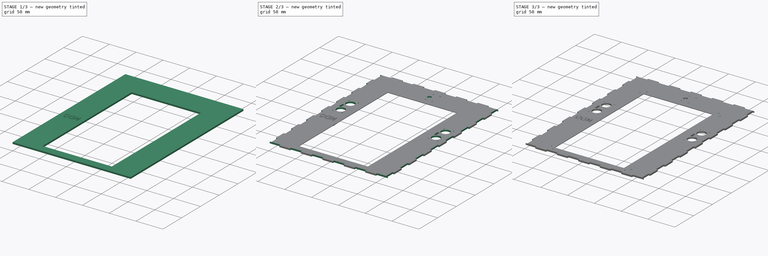
[diagram: build sequence overview — one tinted view per stage of 3, left to right]
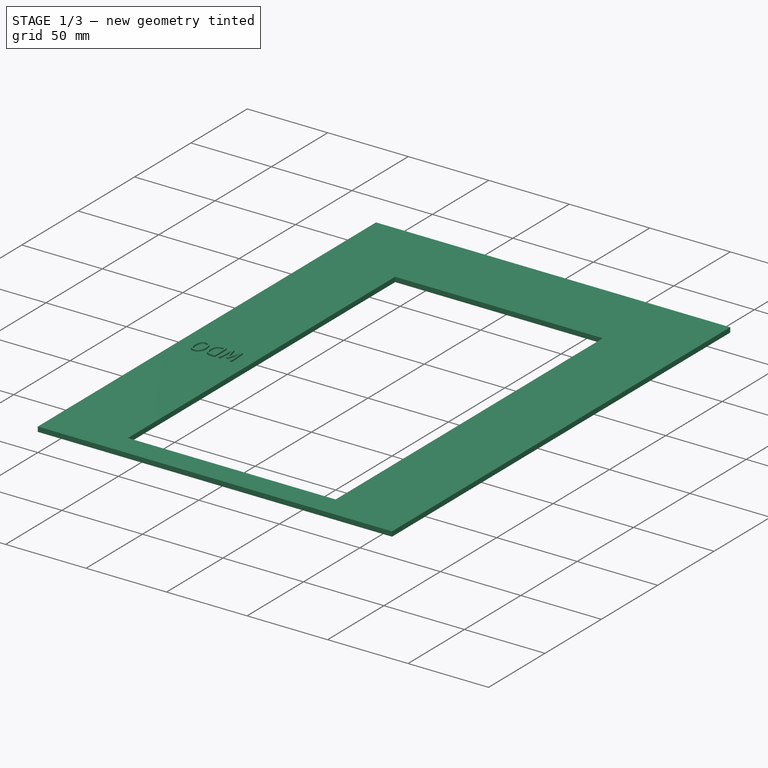
[diagram: stage 1 of 3 — iso view after this stage's code; geometry added in this stage tinted green]
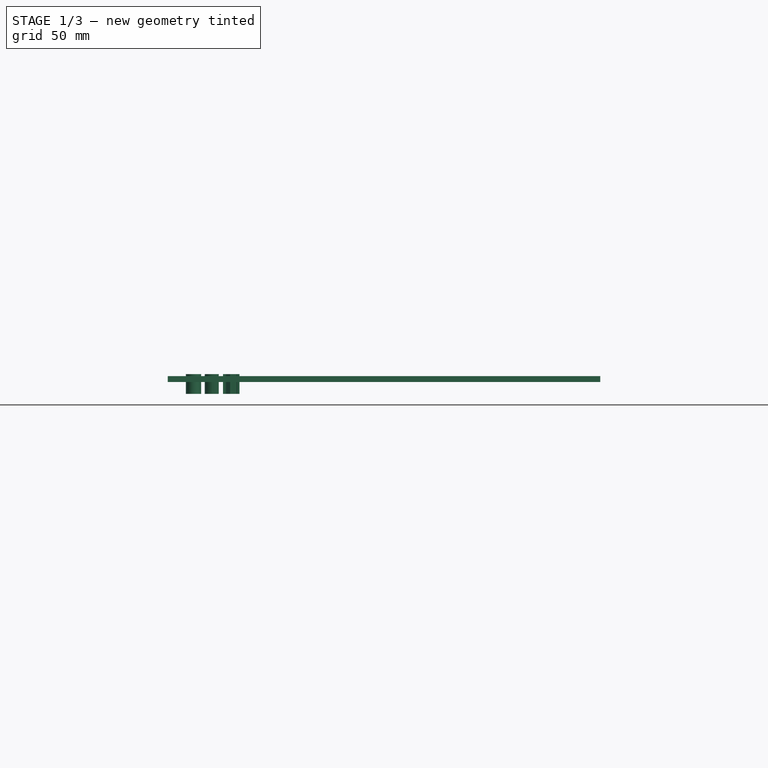
[diagram: stage 1 of 3 — front view after this stage's code; geometry added in this stage tinted green]
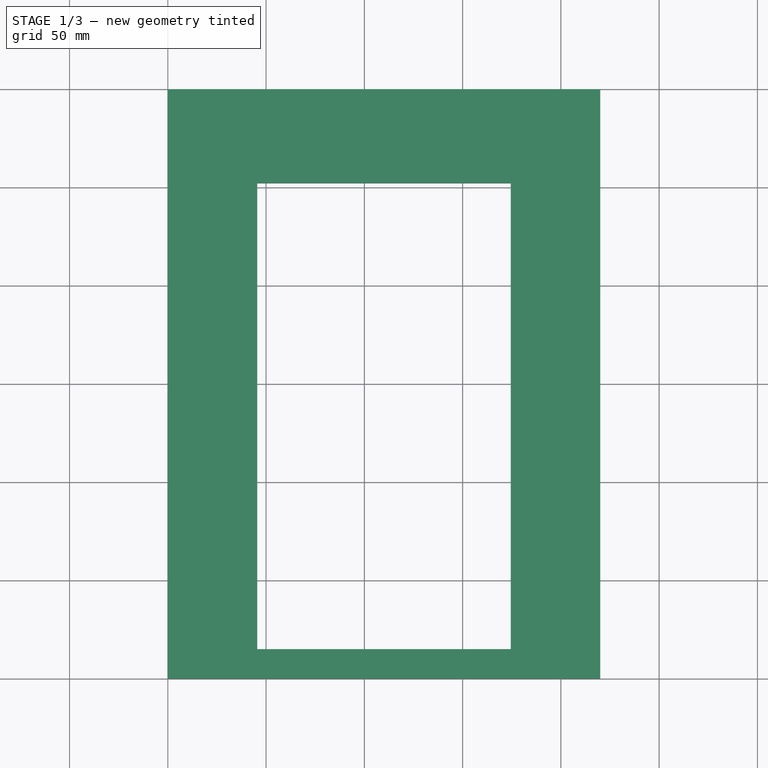
[diagram: stage 1 of 3 — top view after this stage's code; geometry added in this stage tinted green]
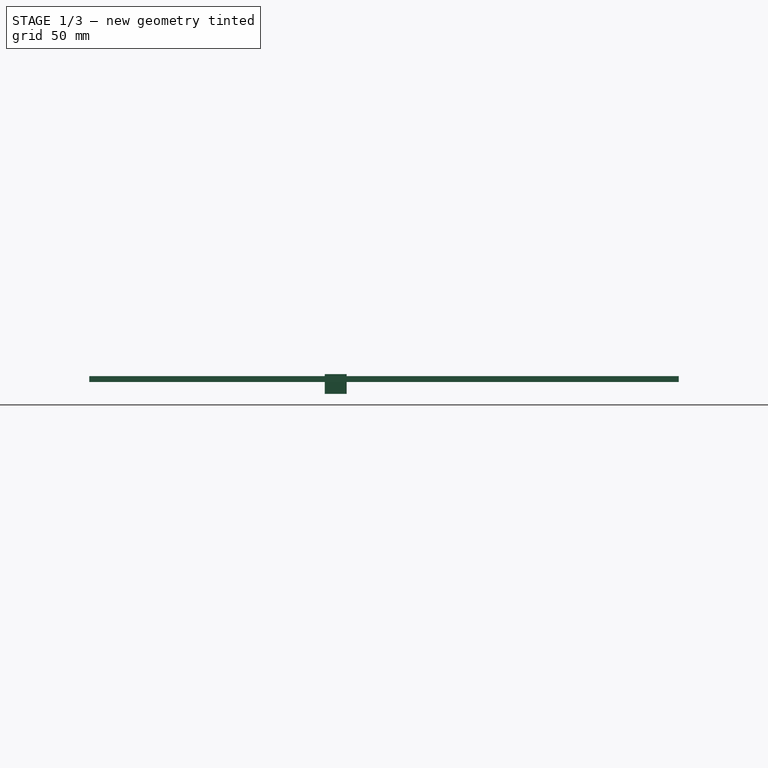
[diagram: stage 1 of 3 — right view after this stage's code; geometry added in this stage tinted green]
FCSTD DOCUMENT  (FreeCAD 0.19R24366 (Git))
Label: mdo
License: All rights reserved
LicenseURL: http://en.wikipedia.org/wiki/All_rights_reserved
objects: Sketcher::SketchObject×4, PartDesign::Pocket×3, PartDesign::Pad×1, Part::Part2DObjectPython×1, PartDesign::Body×1, Part::Extrusion×1, TechDraw::DrawSVGTemplate×1, Part::Cut×1, TechDraw::DrawViewPart×1, TechDraw::DrawPage×1
note: 16 computed .brp shape members not serialized (recipe doc carries the construction recipe); baked Part::Feature solids carry a one-line shape summary decoded from their .brp

FEATURE [Sketcher::SketchObject] Sketch  label="solid"
  FullyConstrained = true
  MapMode = 5
  Support = -> [XY_Plane]
  sketch-geometry (8):
    g0: LineSegment StartX=0 StartY=0 StartZ=0 EndX=220 EndY=0 EndZ=0
    g1: LineSegment StartX=220 StartY=0 StartZ=0 EndX=220 EndY=300 EndZ=0
    g2: LineSegment StartX=220 StartY=300 StartZ=0 EndX=0 EndY=300 EndZ=0
    g3: LineSegment StartX=0 StartY=300 StartZ=0 EndX=0 EndY=0 EndZ=0
    g4: LineSegment StartX=45.5 StartY=252 StartZ=0 EndX=174.5 EndY=252 EndZ=0
    g5: LineSegment StartX=174.5 StartY=252 StartZ=0 EndX=174.5 EndY=15 EndZ=0
    g6: LineSegment StartX=174.5 StartY=15 StartZ=0 EndX=45.5 EndY=15 EndZ=0
    g7: LineSegment StartX=45.5 StartY=15 StartZ=0 EndX=45.5 EndY=252 EndZ=0
  constraints (23):
    c: Coincident(g0,g1)
    c: Coincident(g1,g2)
    c: Coincident(g2,g3)
    c: Coincident(g3,g0)
    c: Horizontal(g0)
    c: Horizontal(g2)
    c: Vertical(g1)
    c: Vertical(g3)
    c: Coincident(g0,g-1)
    c: DistanceX(g0,g0) = 220
    c: DistanceY(g3,g3) = 300
    c: Coincident(g4,g5)
    c: Coincident(g5,g6)
    c: Coincident(g6,g7)
    c: Coincident(g7,g4)
    c: Horizontal(g4)
    c: Horizontal(g6)
    c: Vertical(g5)
    c: Vertical(g7)
    c: DistanceY(g0,g5) = 15
    c: DistanceY(g5,g5) = 237
    c: DistanceX(g6,g6) = 129
    c: DistanceX(g2,g4) = 45.5
FEATURE [PartDesign::Pad] Pad
  Direction = (1,1,1)
  Length = 3
  Length2 = 100
  Profile = -> Sketch
  Type = 0
FEATURE [Part::Part2DObjectPython] ShapeString  # Draft 2D object (typed FeaturePython)
  FontFile = <path>
  Placement = pos=(8,120,3) rot=(0,0,1;0rad)
  Size = 12
  String = MDO
  Tracking = 0
FEATURE [PartDesign::Body] Body
  Group = -> [Sketch,Pad,Sketch001,Pocket,Sketch002,Pocket001,Sketch003,Pocket002,ShapeString]
  Origin = -> Origin
  Tip = -> Pocket002
FEATURE [Part::Extrusion] Extrude
  Base = -> ShapeString
  Dir = (0,0,1)
  DirMode = 2
  FaceMakerClass = Part::FaceMakerBullseye
  LengthFwd = 10
  LengthRev = 0
  Placement = pos=(45,0,7) rot=(0,1,0;3.14159rad)
  Solid = false
  Symmetric = false
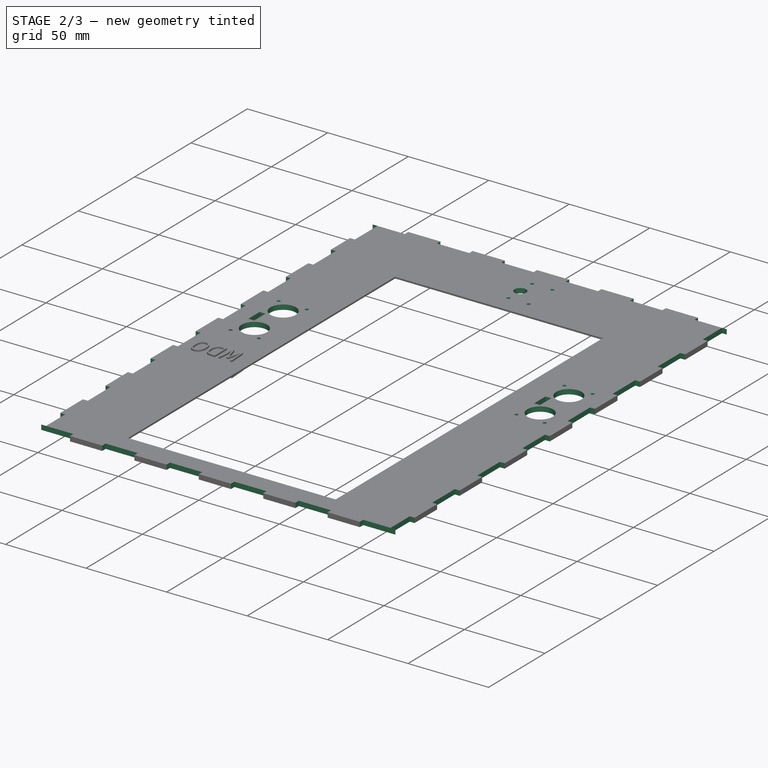
[diagram: stage 2 of 3 — iso view after this stage's code; geometry added in this stage tinted green]
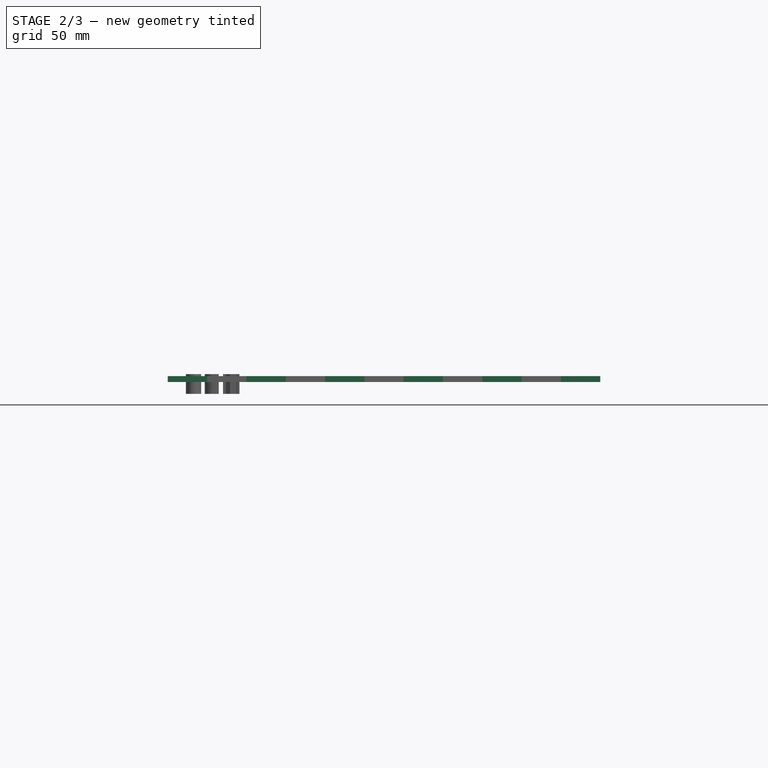
[diagram: stage 2 of 3 — front view after this stage's code; geometry added in this stage tinted green]
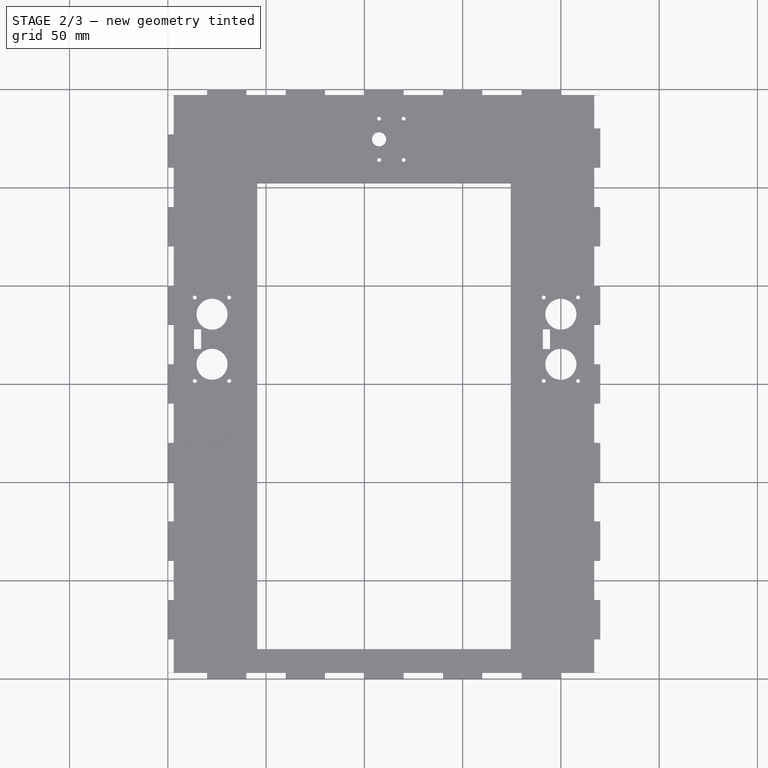
[diagram: stage 2 of 3 — top view after this stage's code; geometry added in this stage tinted green]
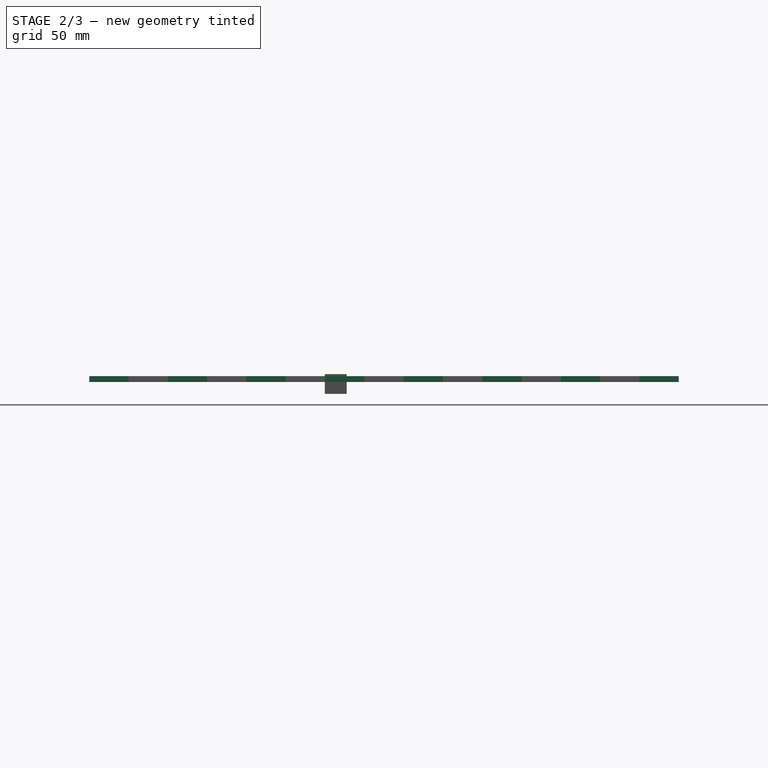
[diagram: stage 2 of 3 — right view after this stage's code; geometry added in this stage tinted green]
FEATURE [Sketcher::SketchObject] Sketch001  label="ranhurado"
  FullyConstrained = true
  MapMode = 5
  Placement = pos=(0,0,0) rot=(1,0,0;3.14159rad)
  Support = -> [Pad]
  sketch-geometry (8):
    g0: LineSegment StartX=41.5 StartY=-12 StartZ=0 EndX=184.5 EndY=-12 EndZ=0
    g1: LineSegment StartX=184.5 StartY=-12 StartZ=0 EndX=184.5 EndY=-257 EndZ=0
    g2: LineSegment StartX=184.5 StartY=-257 StartZ=0 EndX=41.5 EndY=-257 EndZ=0
    g3: LineSegment StartX=41.5 StartY=-257 StartZ=0 EndX=41.5 EndY=-12 EndZ=0
    g4: LineSegment StartX=45.5 StartY=-15 StartZ=0 EndX=174.5 EndY=-15 EndZ=0
    g5: LineSegment StartX=174.5 StartY=-15 StartZ=0 EndX=174.5 EndY=-252 EndZ=0
    g6: LineSegment StartX=174.5 StartY=-252 StartZ=0 EndX=45.5 EndY=-252 EndZ=0
    g7: LineSegment StartX=45.5 StartY=-252 StartZ=0 EndX=45.5 EndY=-15 EndZ=0
  constraints (24):
    c: Coincident(g0,g1)
    c: Coincident(g1,g2)
    c: Coincident(g2,g3)
    c: Coincident(g3,g0)
    c: Horizontal(g0)
    c: Horizontal(g2)
    c: Vertical(g1)
    c: Vertical(g3)
    c: Coincident(g4,g5)
    c: Coincident(g5,g6)
    c: Coincident(g6,g7)
    c: Coincident(g7,g4)
    c: Horizontal(g4)
    c: Horizontal(g6)
    c: Vertical(g5)
    c: Vertical(g7)
    c: DistanceX(g4,g4) = 129
    c: DistanceY(g4,g-1) = 15
    c: DistanceY(g5,g5) = 237
    c: DistanceX(g-1,g4) = 45.5
    c: DistanceY(g1,g5) = 5
    c: DistanceY(g4,g0) = 3
    c: DistanceX(g5,g1) = 10
    c: DistanceX(g2,g6) = 4
FEATURE [PartDesign::Pocket] Pocket
  BaseFeature = -> Pad
  Length = 2
  Length2 = 100
  Profile = -> Sketch001
  Type = 0
FEATURE [Sketcher::SketchObject] Sketch002  label="frontOutside"
  FullyConstrained = true
  MapMode = 5
  Placement = pos=(0,0,3) rot=(0,0,1;0rad)
  Support = -> [Pocket]
  sketch-geometry (169):
    g0: Circle CenterX=22.5 CenterY=185.5 CenterZ=0 NormalX=0 NormalY=0 NormalZ=1 AngleXU=0 Radius=7.9
    g1: Circle CenterX=22.5 CenterY=160 CenterZ=0 NormalX=0 NormalY=0 NormalZ=1 AngleXU=0 Radius=7.9
    g2: Circle CenterX=13.75 CenterY=151.5 CenterZ=0 NormalX=0 NormalY=0 NormalZ=1 AngleXU=0 Radius=1
    g3: Circle CenterX=31.25 CenterY=151.5 CenterZ=0 NormalX=0 NormalY=0 NormalZ=1 AngleXU=0 Radius=1
    g4: Circle CenterX=13.75 CenterY=194 CenterZ=0 NormalX=0 NormalY=0 NormalZ=1 AngleXU=0 Radius=1
    g5: Circle CenterX=31.25 CenterY=194 CenterZ=0 NormalX=0 NormalY=0 NormalZ=1 AngleXU=0 Radius=1
    g6: LineSegment StartX=12.25 StartY=195.5 StartZ=0 EndX=32.75 EndY=195.5 EndZ=0
    g7: LineSegment StartX=32.75 StartY=195.5 StartZ=0 EndX=32.75 EndY=150 EndZ=0
    g8: LineSegment StartX=32.75 StartY=150 StartZ=0 EndX=12.25 EndY=150 EndZ=0
    g9: LineSegment StartX=12.25 StartY=150 StartZ=0 EndX=12.25 EndY=195.5 EndZ=0
    g10: LineSegment StartX=13.35 StartY=177.75 StartZ=0 EndX=16.95 EndY=177.75 EndZ=0
    g11: LineSegment StartX=16.95 StartY=177.75 StartZ=0 EndX=16.95 EndY=167.75 EndZ=0
    g12: LineSegment StartX=16.95 StartY=167.75 StartZ=0 EndX=13.35 EndY=167.75 EndZ=0
    g13: LineSegment StartX=13.35 StartY=167.75 StartZ=0 EndX=13.35 EndY=177.75 EndZ=0
    g14: Circle CenterX=200 CenterY=185.5 CenterZ=0 NormalX=0 NormalY=0 NormalZ=1 AngleXU=0 Radius=7.9
    g15: Circle CenterX=200 CenterY=160 CenterZ=0 NormalX=0 NormalY=0 NormalZ=1 AngleXU=0 Radius=7.9
    g16: Circle CenterX=191.25 CenterY=151.5 CenterZ=0 NormalX=0 NormalY=0 NormalZ=1 AngleXU=0 Radius=1
    g17: Circle CenterX=208.75 CenterY=151.5 CenterZ=0 NormalX=0 NormalY=0 NormalZ=1 AngleXU=0 Radius=1
    g18: Circle CenterX=191.25 CenterY=194 CenterZ=0 NormalX=0 NormalY=0 NormalZ=1 AngleXU=0 Radius=1
    g19: Circle CenterX=208.75 CenterY=194 CenterZ=0 NormalX=0 NormalY=0 NormalZ=1 AngleXU=0 Radius=1
    g20: LineSegment StartX=189.75 StartY=195.5 StartZ=0 EndX=210.25 EndY=195.5 EndZ=0
    g21: LineSegment StartX=210.25 StartY=195.5 StartZ=0 EndX=210.25 EndY=150 EndZ=0
    g22: LineSegment StartX=210.25 StartY=150 StartZ=0 EndX=189.75 EndY=150 EndZ=0
    g23: LineSegment StartX=189.75 StartY=150 StartZ=0 EndX=189.75 EndY=195.5 EndZ=0
    g24: LineSegment StartX=190.85 StartY=177.75 StartZ=0 EndX=194.45 EndY=177.75 EndZ=0
    g25: LineSegment StartX=194.45 StartY=177.75 StartZ=0 EndX=194.45 EndY=167.75 EndZ=0
    g26: LineSegment StartX=194.45 StartY=167.75 StartZ=0 EndX=190.85 EndY=167.75 EndZ=0
    g27: LineSegment StartX=190.85 StartY=167.75 StartZ=0 EndX=190.85 EndY=177.75 EndZ=0
    g28: LineSegment StartX=20 StartY=3 StartZ=0 EndX=0 EndY=3 EndZ=0
    g29: LineSegment StartX=0 StartY=3 StartZ=0 EndX=0 EndY=0 EndZ=0
    g30: LineSegment StartX=0 StartY=0 StartZ=0 EndX=20 EndY=0 EndZ=0
    g31: LineSegment StartX=20 StartY=0 StartZ=0 EndX=20 EndY=3 EndZ=0
    g32: LineSegment StartX=98 StartY=287 StartZ=0 EndX=122 EndY=287 EndZ=0
    g33: LineSegment StartX=122 StartY=287 StartZ=0 EndX=122 EndY=262 EndZ=0
    g34: LineSegment StartX=122 StartY=262 StartZ=0 EndX=98 EndY=262 EndZ=0
    g35: LineSegment StartX=98 StartY=262 StartZ=0 EndX=98 EndY=287 EndZ=0
    g36: Circle CenterX=107.5 CenterY=274.5 CenterZ=0 NormalX=0 NormalY=0 NormalZ=1 AngleXU=0 Radius=3.6
    g37: Circle CenterX=107.5 CenterY=264 CenterZ=0 NormalX=0 NormalY=0 NormalZ=1 AngleXU=0 Radius=1
    g38: Circle CenterX=120 CenterY=264 CenterZ=0 NormalX=0 NormalY=0 NormalZ=1 AngleXU=0 Radius=1
    g39: Circle CenterX=107.5 CenterY=285 CenterZ=0 NormalX=0 NormalY=0 NormalZ=1 AngleXU=0 Radius=1
    g40: Circle CenterX=120 CenterY=285 CenterZ=0 NormalX=0 NormalY=0 NormalZ=1 AngleXU=0 Radius=1
    g41: LineSegment StartX=60 StartY=3 StartZ=0 EndX=40 EndY=3 EndZ=0
    g42: LineSegment StartX=40 StartY=3 StartZ=0 EndX=40 EndY=0 EndZ=0
    g43: LineSegment StartX=40 StartY=0 StartZ=0 EndX=60 EndY=0 EndZ=0
    g44: LineSegment StartX=60 StartY=0 StartZ=0 EndX=60 EndY=3 EndZ=0
    g45: LineSegment StartX=20 StartY=3 StartZ=0 EndX=60 EndY=3 EndZ=0
    g46: LineSegment StartX=100 StartY=3 StartZ=0 EndX=80 EndY=3 EndZ=0
    g47: LineSegment StartX=80 StartY=3 StartZ=0 EndX=80 EndY=0 EndZ=0
    g48: LineSegment StartX=80 StartY=0 StartZ=0 EndX=100 EndY=0 EndZ=0
    g49: LineSegment StartX=100 StartY=0 StartZ=0 EndX=100 EndY=3 EndZ=0
    g50: LineSegment StartX=60 StartY=3 StartZ=0 EndX=100 EndY=3 EndZ=0
    g51: LineSegment StartX=140 StartY=3 StartZ=0 EndX=120 EndY=3 EndZ=0
    g52: LineSegment StartX=120 StartY=3 StartZ=0 EndX=120 EndY=0 EndZ=0
    g53: LineSegment StartX=120 StartY=0 StartZ=0 EndX=140 EndY=0 EndZ=0
    g54: LineSegment StartX=140 StartY=0 StartZ=0 EndX=140 EndY=3 EndZ=0
    g55: LineSegment StartX=100 StartY=3 StartZ=0 EndX=140 EndY=3 EndZ=0
    g56: LineSegment StartX=180 StartY=3 StartZ=0 EndX=160 EndY=3 EndZ=0
    g57: LineSegment StartX=160 StartY=3 StartZ=0 EndX=160 EndY=0 EndZ=0
    g58: LineSegment StartX=160 StartY=0 StartZ=0 EndX=180 EndY=0 EndZ=0
    g59: LineSegment StartX=180 StartY=0 StartZ=0 EndX=180 EndY=3 EndZ=0
    g60: LineSegment StartX=140 StartY=3 StartZ=0 EndX=180 EndY=3 EndZ=0
    g61: LineSegment StartX=220 StartY=3 StartZ=0 EndX=200 EndY=3 EndZ=0
    g62: LineSegment StartX=200 StartY=3 StartZ=0 EndX=200 EndY=0 EndZ=0
    g63: LineSegment StartX=200 StartY=0 StartZ=0 EndX=220 EndY=0 EndZ=0
    g64: LineSegment StartX=220 StartY=0 StartZ=0 EndX=220 EndY=3 EndZ=0
    g65: LineSegment StartX=180 StartY=3 StartZ=0 EndX=220 EndY=3 EndZ=0
    g66: LineSegment StartX=20 StartY=300 StartZ=0 EndX=0 EndY=300 EndZ=0
    g67: LineSegment StartX=0 StartY=300 StartZ=0 EndX=0 EndY=297 EndZ=0
    g68: LineSegment StartX=0 StartY=297 StartZ=0 EndX=20 EndY=297 EndZ=0
    g69: LineSegment StartX=20 StartY=297 StartZ=0 EndX=20 EndY=300 EndZ=0
    g70: LineSegment StartX=60 StartY=300 StartZ=0 EndX=40 EndY=300 EndZ=0
    g71: LineSegment StartX=40 StartY=300 StartZ=0 EndX=40 EndY=297 EndZ=0
    g72: LineSegment StartX=40 StartY=297 StartZ=0 EndX=60 EndY=297 EndZ=0
    g73: LineSegment StartX=60 StartY=297 StartZ=0 EndX=60 EndY=300 EndZ=0
    g74: LineSegment StartX=20 StartY=300 StartZ=0 EndX=60 EndY=300 EndZ=0
    g75: LineSegment StartX=100 StartY=300 StartZ=0 EndX=80 EndY=300 EndZ=0
    g76: LineSegment StartX=80 StartY=300 StartZ=0 EndX=80 EndY=297 EndZ=0
    g77: LineSegment StartX=80 StartY=297 StartZ=0 EndX=100 EndY=297 EndZ=0
    g78: LineSegment StartX=100 StartY=297 StartZ=0 EndX=100 EndY=300 EndZ=0
    g79: LineSegment StartX=60 StartY=300 StartZ=0 EndX=100 EndY=300 EndZ=0
    g80: LineSegment StartX=140 StartY=300 StartZ=0 EndX=120 EndY=300 EndZ=0
    g81: LineSegment StartX=120 StartY=300 StartZ=0 EndX=120 EndY=297 EndZ=0
    g82: LineSegment StartX=120 StartY=297 StartZ=0 EndX=140 EndY=297 EndZ=0
    g83: LineSegment StartX=140 StartY=297 StartZ=0 EndX=140 EndY=300 EndZ=0
    g84: LineSegment StartX=100 StartY=300 StartZ=0 EndX=140 EndY=300 EndZ=0
    g85: LineSegment StartX=180 StartY=300 StartZ=0 EndX=160 EndY=300 EndZ=0
    g86: LineSegment StartX=160 StartY=300 StartZ=0 EndX=160 EndY=297 EndZ=0
    g87: LineSegment StartX=160 StartY=297 StartZ=0 EndX=180 EndY=297 EndZ=0
    g88: LineSegment StartX=180 StartY=297 StartZ=0 EndX=180 EndY=300 EndZ=0
    g89: LineSegment StartX=140 StartY=300 StartZ=0 EndX=180 EndY=300 EndZ=0
    g90: LineSegment StartX=220 StartY=300 StartZ=0 EndX=200 EndY=300 EndZ=0
    g91: LineSegment StartX=200 StartY=300 StartZ=0 EndX=200 EndY=297 EndZ=0
    g92: LineSegment StartX=200 StartY=297 StartZ=0 EndX=220 EndY=297 EndZ=0
    g93: LineSegment StartX=220 StartY=297 StartZ=0 EndX=220 EndY=300 EndZ=0
    g94: LineSegment StartX=180 StartY=300 StartZ=0 EndX=220 EndY=300 EndZ=0
    g95: LineSegment StartX=0 StartY=20.01 StartZ=0 EndX=3 EndY=20.01 EndZ=0
    g96: LineSegment StartX=3 StartY=20.01 StartZ=0 EndX=3 EndY=3.01 EndZ=0
    g97: LineSegment StartX=3 StartY=3.01 StartZ=0 EndX=0 EndY=3.01 EndZ=0
    g98: LineSegment StartX=0 StartY=3.01 StartZ=0 EndX=0 EndY=20.01 EndZ=0
    g99: LineSegment StartX=0 StartY=296.99 StartZ=0 EndX=3 EndY=296.99 EndZ=0
    g100: LineSegment StartX=3 StartY=296.99 StartZ=0 EndX=3 EndY=276.99 EndZ=0
    g101: LineSegment StartX=3 StartY=276.99 StartZ=0 EndX=0 EndY=276.99 EndZ=0
    g102: LineSegment StartX=0 StartY=276.99 StartZ=0 EndX=0 EndY=296.99 EndZ=0
    g103: LineSegment StartX=0 StartY=60 StartZ=0 EndX=3 EndY=60 EndZ=0
    g104: LineSegment StartX=3 StartY=60 StartZ=0 EndX=3 EndY=40 EndZ=0
    g105: LineSegment StartX=3 StartY=40 StartZ=0 EndX=0 EndY=40 EndZ=0
    g106: LineSegment StartX=0 StartY=40 StartZ=0 EndX=0 EndY=60 EndZ=0
    g107: LineSegment StartX=2.7e-15 StartY=100 StartZ=0 EndX=3 EndY=100 EndZ=0
    g108: LineSegment StartX=3 StartY=100 StartZ=0 EndX=3 EndY=80 EndZ=0
    g109: LineSegment StartX=3 StartY=80 StartZ=0 EndX=2.7e-15 EndY=80 EndZ=0
    g110: LineSegment StartX=2.7e-15 StartY=80 StartZ=0 EndX=2.7e-15 EndY=100 EndZ=0
    g111: LineSegment StartX=0 StartY=60 StartZ=0 EndX=2.7e-15 EndY=100 EndZ=0
    g112: LineSegment StartX=4.9e-15 StartY=140 StartZ=0 EndX=3 EndY=140 EndZ=0
    g113: LineSegment StartX=3 StartY=140 StartZ=0 EndX=3 EndY=120 EndZ=0
    g114: LineSegment StartX=3 StartY=120 StartZ=0 EndX=4.9e-15 EndY=120 EndZ=0
    g115: LineSegment StartX=4.9e-15 StartY=120 StartZ=0 EndX=4.9e-15 EndY=140 EndZ=0
    g116: LineSegment StartX=2.7e-15 StartY=100 StartZ=0 EndX=4.9e-15 EndY=140 EndZ=0
    g117: LineSegment StartX=7.5e-15 StartY=180 StartZ=0 EndX=3 EndY=180 EndZ=0
    g118: LineSegment StartX=3 StartY=180 StartZ=0 EndX=3 EndY=160 EndZ=0
    g119: LineSegment StartX=3 StartY=160 StartZ=0 EndX=7.5e-15 EndY=160 EndZ=0
    g120: LineSegment StartX=7.5e-15 StartY=160 StartZ=0 EndX=7.5e-15 EndY=180 EndZ=0
    g121: LineSegment StartX=4.9e-15 StartY=140 StartZ=0 EndX=7.5e-15 EndY=180 EndZ=0
    g122: LineSegment StartX=9.8e-15 StartY=220 StartZ=0 EndX=3 EndY=220 EndZ=0
    g123: LineSegment StartX=3 StartY=220 StartZ=0 EndX=3 EndY=200 EndZ=0
    g124: LineSegment StartX=3 StartY=200 StartZ=0 EndX=9.8e-15 EndY=200 EndZ=0
    g125: LineSegment StartX=9.8e-15 StartY=200 StartZ=0 EndX=9.8e-15 EndY=220 EndZ=0
    g126: LineSegment StartX=7.5e-15 StartY=180 StartZ=0 EndX=9.8e-15 EndY=220 EndZ=0
    g127: LineSegment StartX=1.24e-14 StartY=260 StartZ=0 EndX=3 EndY=260 EndZ=0
    g128: LineSegment StartX=3 StartY=260 StartZ=0 EndX=3 EndY=240 EndZ=0
    g129: LineSegment StartX=3 StartY=240 StartZ=0 EndX=1.24e-14 EndY=240 EndZ=0
    g130: LineSegment StartX=1.24e-14 StartY=240 StartZ=0 EndX=1.24e-14 EndY=260 EndZ=0
    g131: LineSegment StartX=9.8e-15 StartY=220 StartZ=0 EndX=1.24e-14 EndY=260 EndZ=0
    g132: LineSegment StartX=217 StartY=60 StartZ=0 EndX=220 EndY=60 EndZ=0
    g133: LineSegment StartX=220 StartY=60 StartZ=0 EndX=220 EndY=40 EndZ=0
    g134: LineSegment StartX=220 StartY=40 StartZ=0 EndX=217 EndY=40 EndZ=0
    g135: LineSegment StartX=217 StartY=40 StartZ=0 EndX=217 EndY=60 EndZ=0
    g136: LineSegment StartX=217 StartY=100 StartZ=0 EndX=220 EndY=100 EndZ=0
    g137: LineSegment StartX=220 StartY=100 StartZ=0 EndX=220 EndY=80 EndZ=0
    g138: LineSegment StartX=220 StartY=80 StartZ=0 EndX=217 EndY=80 EndZ=0
    g139: LineSegment StartX=217 StartY=80 StartZ=0 EndX=217 EndY=100 EndZ=0
    g140: LineSegment StartX=217 StartY=60 StartZ=0 EndX=217 EndY=100 EndZ=0
    g141: LineSegment StartX=217 StartY=140 StartZ=0 EndX=220 EndY=140 EndZ=0
    g142: LineSegment StartX=220 StartY=140 StartZ=0 EndX=220 EndY=120 EndZ=0
    g143: LineSegment StartX=220 StartY=120 StartZ=0 EndX=217 EndY=120 EndZ=0
    g144: LineSegment StartX=217 StartY=120 StartZ=0 EndX=217 EndY=140 EndZ=0
    g145: LineSegment StartX=217 StartY=100 StartZ=0 EndX=217 EndY=140 EndZ=0
    g146: LineSegment StartX=217 StartY=180 StartZ=0 EndX=220 EndY=180 EndZ=0
    g147: LineSegment StartX=220 StartY=180 StartZ=0 EndX=220 EndY=160 EndZ=0
    g148: LineSegment StartX=220 StartY=160 StartZ=0 EndX=217 EndY=160 EndZ=0
    g149: LineSegment StartX=217 StartY=160 StartZ=0 EndX=217 EndY=180 EndZ=0
    g150: LineSegment StartX=217 StartY=140 StartZ=0 EndX=217 EndY=180 EndZ=0
    g151: LineSegment StartX=217 StartY=220 StartZ=0 EndX=220 EndY=220 EndZ=0
    g152: LineSegment StartX=220 StartY=220 StartZ=0 EndX=220 EndY=200 EndZ=0
    g153: LineSegment StartX=220 StartY=200 StartZ=0 EndX=217 EndY=200 EndZ=0
    g154: LineSegment StartX=217 StartY=200 StartZ=0 EndX=217 EndY=220 EndZ=0
    g155: LineSegment StartX=217 StartY=180 StartZ=0 EndX=217 EndY=220 EndZ=0
    g156: LineSegment StartX=217 StartY=260 StartZ=0 EndX=220 EndY=260 EndZ=0
    g157: LineSegment StartX=220 StartY=260 StartZ=0 EndX=220 EndY=240 EndZ=0
    g158: LineSegment StartX=220 StartY=240 StartZ=0 EndX=217 EndY=240 EndZ=0
    g159: LineSegment StartX=217 StartY=240 StartZ=0 EndX=217 EndY=260 EndZ=0
    g160: LineSegment StartX=217 StartY=220 StartZ=0 EndX=217 EndY=260 EndZ=0
    g161: LineSegment StartX=217 StartY=296.99 StartZ=0 EndX=220 EndY=296.99 EndZ=0
    g162: LineSegment StartX=220 StartY=296.99 StartZ=0 EndX=220 EndY=279.99 EndZ=0
    g163: LineSegment StartX=220 StartY=279.99 StartZ=0 EndX=217 EndY=279.99 EndZ=0
    g164: LineSegment StartX=217 StartY=279.99 StartZ=0 EndX=217 EndY=296.99 EndZ=0
    g165: LineSegment StartX=217 StartY=20.01 StartZ=0 EndX=220 EndY=20.01 EndZ=0
    g166: LineSegment StartX=220 StartY=20.01 StartZ=0 EndX=220 EndY=3.01 EndZ=0
    g167: LineSegment StartX=220 StartY=3.01 StartZ=0 EndX=217 EndY=3.01 EndZ=0
    g168: LineSegment StartX=217 StartY=3.01 StartZ=0 EndX=217 EndY=20.01 EndZ=0
  constraints (487):
    c: Diameter(g0) = 15.8
    c: Diameter(g1) = 15.8
    c: DistanceX(g1,g0) = 0
    c: DistanceX(g-1,g1) = 22.5
    c: DistanceY(g1,g0) = 25.5
    c: DistanceY(g2,g1) = 8.5
    c: Diameter(g2) = 2
    c: DistanceX(g2,g1) = 8.75
    c: Equal(g2,g3) = 2
    c: DistanceX(g2,g3) = 17.5
    c: Equal(g2,g4) = 2
    c: DistanceY(g0,g5) = 8.5
    c: Diameter(g5) = 2
    c: DistanceX(g3,g5) = 0
    c: DistanceY(g5,g4) = 0
    c: DistanceX(g4,g2) = 0
    c: DistanceY(g3,g2) = 0
    c: Coincident(g6,g7)
    c: Coincident(g7,g8)
    c: Coincident(g8,g9)
    c: Coincident(g9,g6)
    c: Horizontal(g6)
    c: Horizontal(g8)
    c: Vertical(g7)
    c: Vertical(g9)
    c: DistanceY(g7,g7) = 45.5
    c: DistanceX(g6,g6) = 20.5
    c: DistanceX(g8,g2) = 1.5
    c: DistanceY(g8,g2) = 1.5
    c: DistanceY(g-1,g8) = 150
    c: Coincident(g10,g11)
    c: Coincident(g11,g12)
    c: Coincident(g12,g13)
    c: Coincident(g13,g10)
    c: Horizontal(g10)
    c: Horizontal(g12)
    c: Vertical(g11)
    c: Vertical(g13)
    c: DistanceY(g11,g11) = 10
    c: DistanceX(g10,g10) = 3.6
    c: DistanceX(g8,g12) = 1.1
    c: DistanceY(g8,g12) = 17.75
    c: Equal(g0,g14) = 15.8
    c: Equal(g1,g15) = 15.8
    c: DistanceX(g15,g14) = 0
    c: DistanceY(g15,g14) = 25.5
    c: DistanceY(g16,g15) = 8.5
    c: Equal(g2,g16) = 2
    c: DistanceX(g16,g15) = 8.75
    c: Equal(g16,g17) = 2
    c: DistanceX(g16,g17) = 17.5
    c: Equal(g16,g18) = 2
    c: DistanceY(g14,g19) = 8.5
    c: Equal(g5,g19) = 2
    c: DistanceX(g17,g19) = 0
    c: DistanceY(g19,g18) = 0
    c: DistanceX(g18,g16) = 0
    c: DistanceY(g17,g16) = 0
    c: Coincident(g20,g21)
    c: Coincident(g21,g22)
    c: Coincident(g22,g23)
    c: Coincident(g23,g20)
    c: Horizontal(g20)
    c: Horizontal(g22)
    c: Vertical(g21)
    c: Vertical(g23)
    c: Equal(g7,g21) = 45.5
    c: Equal(g6,g20) = 20.5
    c: DistanceX(g22,g16) = 1.5
    c: DistanceY(g22,g16) = 1.5
    c: Coincident(g24,g25)
    c: Coincident(g25,g26)
    c: Coincident(g26,g27)
    c: Coincident(g27,g24)
    c: Horizontal(g24)
    c: Horizontal(g26)
    c: Vertical(g25)
    c: Vertical(g27)
    c: Equal(g11,g25) = 10
    c: Equal(g10,g24) = 3.6
    c: DistanceX(g22,g26) = 1.1
    c: DistanceY(g22,g26) = 17.75
    c: DistanceX(g0,g14) = 177.5
    c: DistanceY(g14,g0) = 0
    c: Coincident(g28,g29)
    c: Coincident(g29,g30)
    c: Coincident(g30,g31)
    c: Coincident(g31,g28)
    c: Horizontal(g28)
    c: Horizontal(g30)
    c: Vertical(g29)
    c: Vertical(g31)
    c: DistanceY(g29,g29) = 3
    c: DistanceY(g-1,g30) = 0
    c: Coincident(g32,g33)
    c: Coincident(g33,g34)
    c: Coincident(g34,g35)
    c: Coincident(g35,g32)
    c: Horizontal(g32)
    c: Horizontal(g34)
    c: Vertical(g33)
    c: Vertical(g35)
    c: DistanceX(g34,g34) = 24
    c: DistanceY(g33,g33) = 25
    c: DistanceY(g30,g34) = 262
    c: Diameter(g36) = 7.2
    c: DistanceX(g34,g36) = 9.5
    c: DistanceY(g34,g36) = 12.5
    c: DistanceX(g37,g36) = 0
    c: Diameter(g37) = 2
    c: DistanceY(g34,g37) = 2
    c: Equal(g37,g38) = 2
    c: DistanceX(g38,g33) = 2
    c: DistanceY(g33,g38) = 2
    c: Equal(g37,g39) = 2
    c: Equal(g39,g40) = 2
    c: DistanceY(g39,g32) = 2
    c: DistanceY(g40,g32) = 2
    c: DistanceX(g39,g36) = 0
    c: DistanceX(g40,g38) = 0
    c: DistanceX(g-1,g32) = 98
    c: DistanceX(g28,g28) = 20
    c: DistanceX(g-1,g29) = 0
    c: Coincident(g41,g42)
    c: Coincident(g42,g43)
    c: Coincident(g43,g44)
    c: Coincident(g44,g41)
    c: Horizontal(g41)
    c: Horizontal(g43)
    c: Vertical(g42)
    c: Vertical(g44)
    c: Equal(g29,g42) = 3
    c: Equal(g28,g41) = 20
    c: Coincident(g28,g45)
    c: Coincident(g41,g45)
    c: Distance(g45) = 40
    c: Angle(g45) = 0
    c: Coincident(g46,g47)
    c: Coincident(g47,g48)
    c: Coincident(g48,g49)
    c: Coincident(g49,g46)
    c: Horizontal(g46)
    c: Horizontal(g48)
    c: Vertical(g47)
    c: Vertical(g49)
    c: Equal(g29,g47) = 3
    c: Equal(g28,g46) = 20
    c: Coincident(g41,g50)
    c: Coincident(g46,g50)
    c: Equal(g45,g50)
    c: Parallel(g50,g45)
    c: Coincident(g51,g52)
    c: Coincident(g52,g53)
    c: Coincident(g53,g54)
    c: Coincident(g54,g51)
    c: Horizontal(g51)
    c: Horizontal(g53)
    c: Vertical(g52)
    c: Vertical(g54)
    c: Equal(g29,g52) = 3
    c: Equal(g28,g51) = 20
    c: Coincident(g46,g55)
    c: Coincident(g51,g55)
    c: Equal(g45,g55)
    c: Parallel(g55,g45)
    c: Coincident(g56,g57)
    c: Coincident(g57,g58)
    c: Coincident(g58,g59)
    c: Coincident(g59,g56)
    c: Horizontal(g56)
    c: Horizontal(g58)
    c: Vertical(g57)
    c: Vertical(g59)
    c: Equal(g29,g57) = 3
    c: Equal(g28,g56) = 20
    c: Coincident(g51,g60)
    c: Coincident(g56,g60)
    c: Equal(g45,g60)
    c: Parallel(g60,g45)
    c: Coincident(g61,g62)
    c: Coincident(g62,g63)
    c: Coincident(g63,g64)
    c: Coincident(g64,g61)
    c: Horizontal(g61)
    c: Horizontal(g63)
    c: Vertical(g62)
    c: Vertical(g64)
    c: Equal(g29,g62) = 3
    c: Equal(g28,g61) = 20
    c: Coincident(g56,g65)
    c: Coincident(g61,g65)
    c: Equal(g45,g65)
    c: Parallel(g65,g45)
    c: Coincident(g66,g67)
    c: Coincident(g67,g68)
    c: Coincident(g68,g69)
    c: Coincident(g69,g66)
    c: Horizontal(g66)
    c: Horizontal(g68)
    c: Vertical(g67)
    c: Vertical(g69)
    c: Equal(g29,g67) = 3
    c: Equal(g28,g66) = 20
    c: Coincident(g70,g71)
    c: Coincident(g71,g72)
    c: Coincident(g72,g73)
    c: Coincident(g73,g70)
    c: Horizontal(g70)
    c: Horizontal(g72)
    c: Vertical(g71)
    c: Vertical(g73)
    c: Equal(g67,g71) = 3
    c: Equal(g66,g70) = 20
    c: Coincident(g66,g74)
    c: Coincident(g70,g74)
    c: Equal(g45,g74) = 40
    c: Parallel(g45,g74)
    c: Coincident(g75,g76)
    c: Coincident(g76,g77)
    c: Coincident(g77,g78)
    c: Coincident(g78,g75)
    c: Horizontal(g75)
    c: Horizontal(g77)
    c: Vertical(g76)
    c: Vertical(g78)
    c: Equal(g67,g76) = 3
    c: Equal(g66,g75) = 20
    c: Coincident(g70,g79)
    c: Coincident(g75,g79)
    c: Equal(g74,g79)
    c: Parallel(g79,g74)
    c: Coincident(g80,g81)
    c: Coincident(g81,g82)
    c: Coincident(g82,g83)
    c: Coincident(g83,g80)
    c: Horizontal(g80)
    c: Horizontal(g82)
    c: Vertical(g81)
    c: Vertical(g83)
    c: Equal(g67,g81) = 3
    c: Equal(g66,g80) = 20
    c: Coincident(g75,g84)
    c: Coincident(g80,g84)
    c: Equal(g74,g84)
    c: Parallel(g84,g74)
    c: Coincident(g85,g86)
    c: Coincident(g86,g87)
    c: Coincident(g87,g88)
    c: Coincident(g88,g85)
    c: Horizontal(g85)
    c: Horizontal(g87)
    c: Vertical(g86)
    c: Vertical(g88)
    c: Equal(g67,g86) = 3
    c: Equal(g66,g85) = 20
    c: Coincident(g80,g89)
    c: Coincident(g85,g89)
    c: Equal(g74,g89)
    c: Parallel(g89,g74)
    c: Coincident(g90,g91)
    c: Coincident(g91,g92)
    c: Coincident(g92,g93)
    c: Coincident(g93,g90)
    c: Horizontal(g90)
    c: Horizontal(g92)
    c: Vertical(g91)
    c: Vertical(g93)
    c: Equal(g67,g91) = 3
    c: Equal(g66,g90) = 20
    c: Coincident(g85,g94)
    c: Coincident(g90,g94)
    c: Equal(g74,g94)
    c: Parallel(g94,g74)
    c: DistanceX(g28,g67) = 0
    c: DistanceY(g29,g66) = 300
    c: Coincident(g95,g96)
    c: Coincident(g96,g97)
    c: Coincident(g97,g98)
    c: Coincident(g98,g95)
    c: Horizontal(g95)
    c: Horizontal(g97)
    c: Vertical(g96)
    c: Vertical(g98)
    c: DistanceX(g97,g97) = 3
    c: DistanceY(g96,g96) = 17
    c: DistanceX(g29,g97) = 0
    c: DistanceY(g28,g97) = 0.01
    c: Coincident(g99,g100)
    c: Coincident(g100,g101)
    c: Coincident(g101,g102)
    c: Coincident(g102,g99)
    c: Horizontal(g99)
    c: Horizontal(g101)
    c: Vertical(g100)
    c: Vertical(g102)
    c: DistanceX(g101,g101) = 3
    c: DistanceY(g100,g100) = 20
    c: DistanceX(g67,g101) = 0
    c: DistanceY(g99,g67) = 0.01
    c: Coincident(g103,g104)
    c: Coincident(g104,g105)
    c: Coincident(g105,g106)
    c: Coincident(g106,g103)
    c: Horizontal(g103)
    c: Horizontal(g105)
    c: Vertical(g104)
    c: Vertical(g106)
    c: DistanceX(g101,g105) = 0
    c: DistanceX(g105,g105) = 3
    c: DistanceY(g104,g104) = 20
    c: DistanceY(g29,g105) = 40
    c: Coincident(g107,g108)
    c: Coincident(g108,g109)
    c: Coincident(g109,g110)
    c: Coincident(g110,g107)
    c: Horizontal(g107)
    c: Horizontal(g109)
    c: Vertical(g108)
    c: Vertical(g110)
    c: Equal(g105,g109) = 3
    c: Equal(g104,g108) = 20
    c: Coincident(g103,g111)
    c: Coincident(g107,g111)
    c: Distance(g111) = 40
    c: Angle(g111) = 1.5708
    c: Coincident(g112,g113)
    c: Coincident(g113,g114)
    c: Coincident(g114,g115)
    c: Coincident(g115,g112)
    c: Horizontal(g112)
    c: Horizontal(g114)
    c: Vertical(g113)
    c: Vertical(g115)
    c: Equal(g105,g114) = 3
    c: Equal(g104,g113) = 20
    c: Coincident(g107,g116)
    c: Coincident(g112,g116)
    c: Equal(g111,g116)
    c: Parallel(g116,g111)
    c: Coincident(g117,g118)
    c: Coincident(g118,g119)
    c: Coincident(g119,g120)
    c: Coincident(g120,g117)
    c: Horizontal(g117)
    c: Horizontal(g119)
    c: Vertical(g118)
    c: Vertical(g120)
    c: Equal(g105,g119) = 3
    c: Equal(g104,g118) = 20
    c: Coincident(g112,g121)
    c: Coincident(g117,g121)
    c: Equal(g111,g121)
    c: Parallel(g121,g111)
    c: Coincident(g122,g123)
    c: Coincident(g123,g124)
    c: Coincident(g124,g125)
    c: Coincident(g125,g122)
    c: Horizontal(g122)
    c: Horizontal(g124)
    c: Vertical(g123)
    c: Vertical(g125)
    c: Equal(g105,g124) = 3
    c: Equal(g104,g123) = 20
    c: Coincident(g117,g126)
    c: Coincident(g122,g126)
    c: Equal(g111,g126)
    c: Parallel(g126,g111)
    c: Coincident(g127,g128)
    c: Coincident(g128,g129)
    c: Coincident(g129,g130)
    c: Coincident(g130,g127)
    c: Horizontal(g127)
    c: Horizontal(g129)
    c: Vertical(g128)
    c: Vertical(g130)
    c: Equal(g105,g129) = 3
    c: Equal(g104,g128) = 20
    c: Coincident(g122,g131)
    c: Coincident(g127,g131)
    c: Equal(g111,g131)
    c: Parallel(g131,g111)
    c: Coincident(g132,g133)
    c: Coincident(g133,g134)
    c: Coincident(g134,g135)
    c: Coincident(g135,g132)
    c: Horizontal(g132)
    c: Horizontal(g134)
    c: Vertical(g133)
    c: Vertical(g135)
    c: Equal(g105,g134) = 3
    c: Equal(g104,g133) = 20
    c: Coincident(g136,g137)
    c: Coincident(g137,g138)
    c: Coincident(g138,g139)
    c: Coincident(g139,g136)
    c: Horizontal(g136)
    c: Horizontal(g138)
    c: Vertical(g137)
    c: Vertical(g139)
    c: Equal(g134,g138) = 3
    c: Equal(g133,g137) = 20
    c: Coincident(g132,g140)
    c: Coincident(g136,g140)
    c: Equal(g111,g140) = 40
    c: Parallel(g111,g140) = 1.5708
    c: Coincident(g141,g142)
    c: Coincident(g142,g143)
    c: Coincident(g143,g144)
    c: Coincident(g144,g141)
    c: Horizontal(g141)
    c: Horizontal(g143)
    c: Vertical(g142)
    c: Vertical(g144)
    c: Equal(g134,g143) = 3
    c: Equal(g133,g142) = 20
    c: Coincident(g136,g145)
    c: Coincident(g141,g145)
    c: Equal(g140,g145)
    c: Parallel(g145,g140)
    c: Coincident(g146,g147)
    c: Coincident(g147,g148)
    c: Coincident(g148,g149)
    c: Coincident(g149,g146)
    c: Horizontal(g146)
    c: Horizontal(g148)
    c: Vertical(g147)
    c: Vertical(g149)
    c: Equal(g134,g148) = 3
    c: Equal(g133,g147) = 20
    c: Coincident(g141,g150)
    c: Coincident(g146,g150)
    c: Equal(g140,g150)
    c: Parallel(g150,g140)
    c: Coincident(g151,g152)
    c: Coincident(g152,g153)
    c: Coincident(g153,g154)
    c: Coincident(g154,g151)
    c: Horizontal(g151)
    c: Horizontal(g153)
    c: Vertical(g152)
    c: Vertical(g154)
    c: Equal(g134,g153) = 3
    c: Equal(g133,g152) = 20
    c: Coincident(g146,g155)
    c: Coincident(g151,g155)
    c: Equal(g140,g155)
    c: Parallel(g155,g140)
    c: Coincident(g156,g157)
    c: Coincident(g157,g158)
    c: Coincident(g158,g159)
    c: Coincident(g159,g156)
    c: Horizontal(g156)
    c: Horizontal(g158)
    c: Vertical(g157)
    c: Vertical(g159)
    c: Equal(g134,g158) = 3
    c: Equal(g133,g157) = 20
    c: Coincident(g151,g160)
    c: Coincident(g156,g160)
    c: Equal(g140,g160)
    c: Parallel(g160,g140)
    c: DistanceX(g61,g133) = 0
    c: DistanceY(g104,g134) = 0
    c: Coincident(g161,g162)
    c: Coincident(g162,g163)
    c: Coincident(g163,g164)
    c: Coincident(g164,g161)
    c: Horizontal(g161)
    c: Horizontal(g163)
    c: Vertical(g162)
    c: Vertical(g164)
    c: DistanceX(g163,g163) = 3
    c: DistanceY(g162,g162) = 17
    c: DistanceY(g161,g92) = 0.01
    c: DistanceX(g162,g92) = 0
    c: Coincident(g165,g166)
    c: Coincident(g166,g167)
    c: Coincident(g167,g168)
    c: Coincident(g168,g165)
    c: Horizontal(g165)
    c: Horizontal(g167)
    c: Vertical(g166)
    c: Vertical(g168)
    c: DistanceX(g165,g165) = 3
    c: DistanceY(g166,g166) = 17
    c: DistanceX(g166,g61) = 0
    c: DistanceY(g61,g166) = 0.01
FEATURE [PartDesign::Pocket] Pocket001
  BaseFeature = -> Pocket
  Length = 5
  Length2 = 100
  Profile = -> Sketch002
  Type = 1
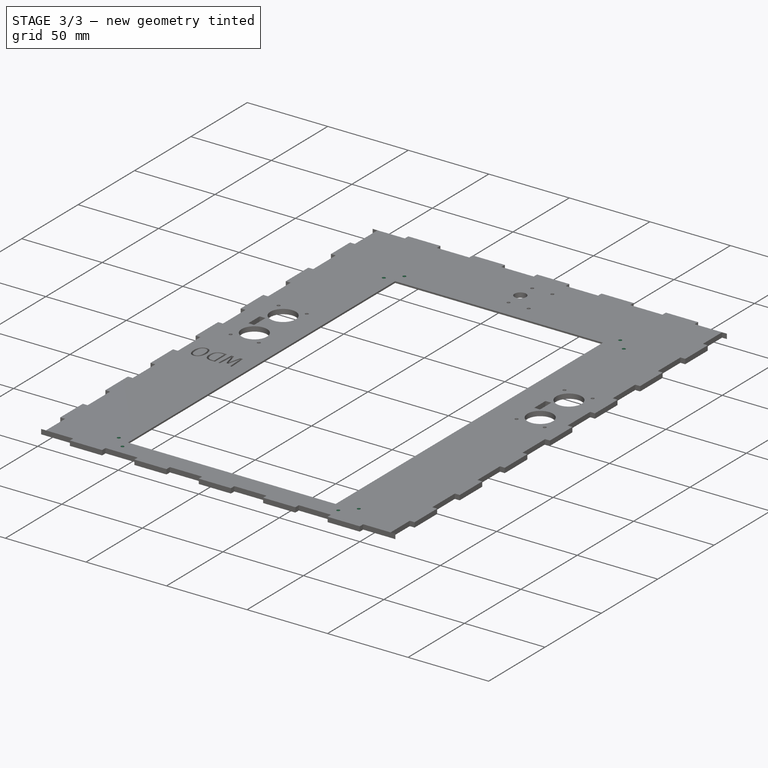
[diagram: stage 3 of 3 — iso view after this stage's code; geometry added in this stage tinted green]
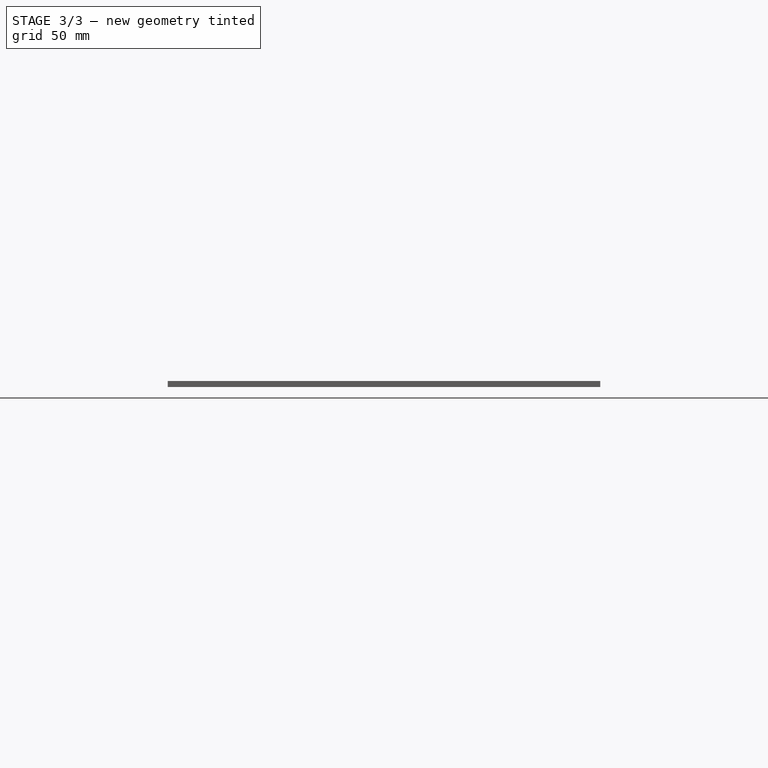
[diagram: stage 3 of 3 — front view after this stage's code; geometry added in this stage tinted green]
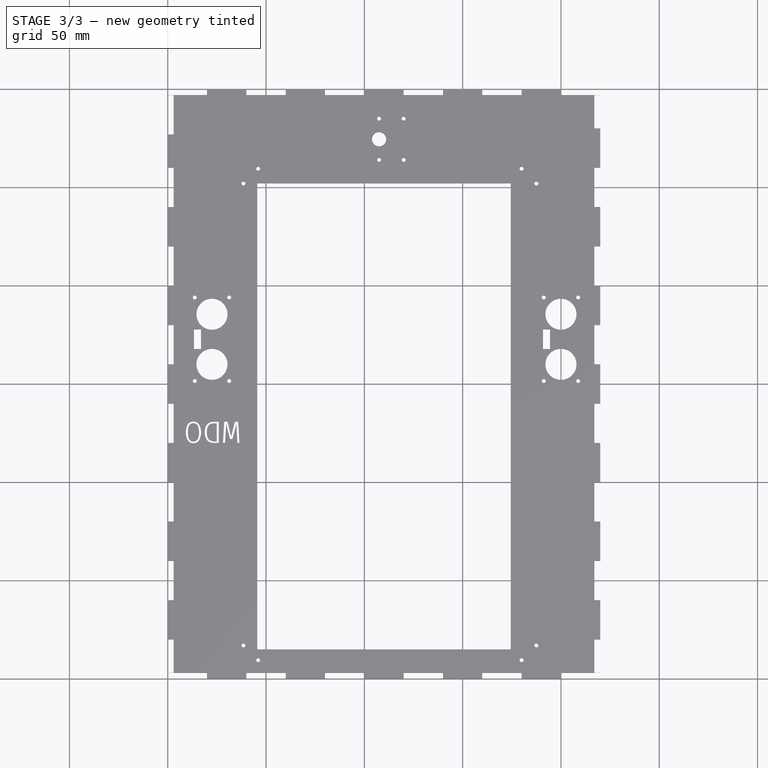
[diagram: stage 3 of 3 — top view after this stage's code; geometry added in this stage tinted green]
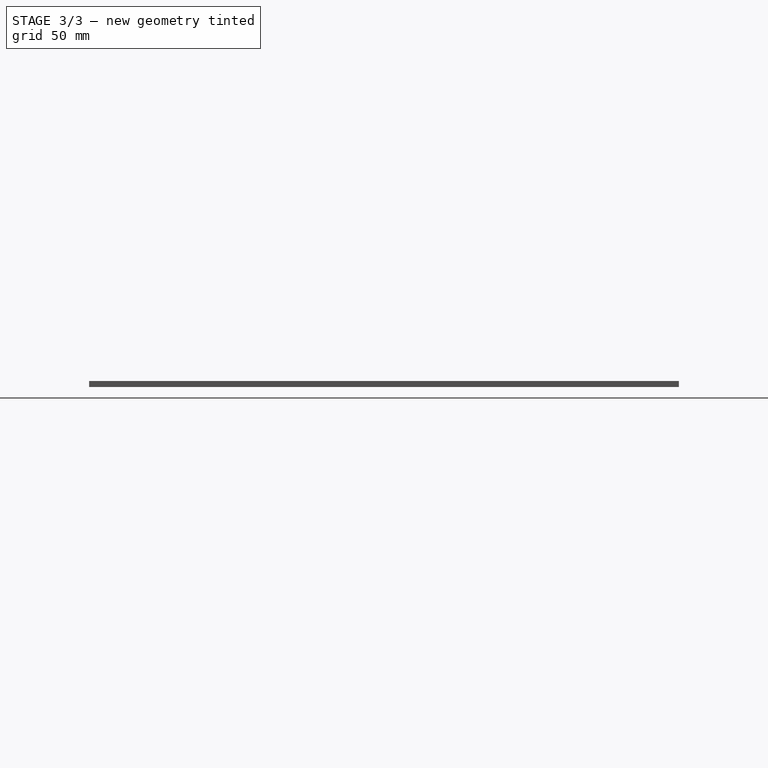
[diagram: stage 3 of 3 — right view after this stage's code; geometry added in this stage tinted green]
FEATURE [Sketcher::SketchObject] Sketch003  label="holesDisplay"
  FullyConstrained = true
  MapMode = 5
  Placement = pos=(0,0,0) rot=(1,0,0;3.14159rad)
  Support = -> [Pocket001]
  sketch-geometry (8):
    g0: Circle CenterX=38.5 CenterY=-17 CenterZ=0 NormalX=0 NormalY=0 NormalZ=1 AngleXU=0 Radius=1
    g1: Circle CenterX=46 CenterY=-9.5 CenterZ=0 NormalX=0 NormalY=0 NormalZ=1 AngleXU=0 Radius=1
    g2: Circle CenterX=180 CenterY=-259.5 CenterZ=0 NormalX=0 NormalY=0 NormalZ=1 AngleXU=0 Radius=1
    g3: Circle CenterX=187.5 CenterY=-252 CenterZ=0 NormalX=0 NormalY=0 NormalZ=1 AngleXU=0 Radius=1
    g4: Circle CenterX=180 CenterY=-9.5 CenterZ=0 NormalX=0 NormalY=0 NormalZ=1 AngleXU=0 Radius=1
    g5: Circle CenterX=187.5 CenterY=-17 CenterZ=0 NormalX=0 NormalY=0 NormalZ=1 AngleXU=0 Radius=1
    g6: Circle CenterX=38.5 CenterY=-252 CenterZ=0 NormalX=0 NormalY=0 NormalZ=1 AngleXU=0 Radius=1
    g7: Circle CenterX=46 CenterY=-259.5 CenterZ=0 NormalX=0 NormalY=0 NormalZ=1 AngleXU=0 Radius=1
  constraints (24):
    c: Diameter(g0) = 2
    c: DistanceY(g0,g-1) = 17
    c: DistanceX(g-1,g0) = 38.5
    c: Equal(g0,g1) = 3
    c: DistanceY(g0,g1) = 7.5
    c: DistanceX(g0,g1) = 7.5
    c: Equal(g0,g2) = 3
    c: Equal(g2,g3) = 3
    c: DistanceY(g2,g3) = 7.5
    c: DistanceX(g2,g3) = 7.5
    c: DistanceY(g4,g1) = 0
    c: Equal(g0,g5) = 3
    c: DistanceY(g5,g4) = 7.5
    c: DistanceX(g4,g5) = 7.5
    c: DistanceX(g1,g4) = 134
    c: Diameter(g4) = 2
    c: DistanceY(g7,g6) = 7.5
    c: DistanceX(g6,g7) = 7.5
    c: Equal(g4,g6) = 3
    c: DistanceY(g2,g7) = 0
    c: DistanceX(g0,g6) = 0
    c: DistanceY(g2,g-1) = 259.5
    c: DistanceX(g3,g5) = 0
    c: Diameter(g7) = 2
FEATURE [PartDesign::Pocket] Pocket002
  BaseFeature = -> Pocket001
  Length = 5
  Length2 = 100
  Profile = -> Sketch003
  Type = 0
FEATURE [TechDraw::DrawSVGTemplate] Template
  EditableTexts = AUTHOR_NAME=AUTHOR NAME; DN=DN; DRAWING_TITLE=DRAWING TITLE; FC-DATE=DD/MM/YYYY; FC-REV=REV A; FC-SC=SCALE; FC-SH=X / Y; FC-SI=A2; FreeCAD_DRAWING=FreeCAD DRAWING; PN=PN
  Height = 420
  Orientation = 1
  Width = 594
FEATURE [Part::Cut] Cut
  Base = -> Body
  Tool = -> Extrude
FEATURE [TechDraw::DrawViewPart] View
  CoarseView = false
  Direction = (0,0,-1)
  Focus = 100
  HardHidden = false
  IsoCount = 0
  IsoHidden = false
  IsoVisible = false
  LockPosition = false
  Perspective = false
  Rotation = 0
  ScaleType = 0
  SeamHidden = false
  SeamVisible = true
  SmoothHidden = false
  SmoothVisible = true
  Source = -> [Cut]
  X = 202.352
  XDirection = (1,0,0)
  Y = 228.822
FEATURE [TechDraw::DrawPage] Page
  KeepUpdated = true
  NextBalloonIndex = 1
  ProjectionType = 0
  Template = -> Template
  Views = -> [View]
note: 1 file-system path scrubbed to <path> (originals preserved in the JSON sidecar)
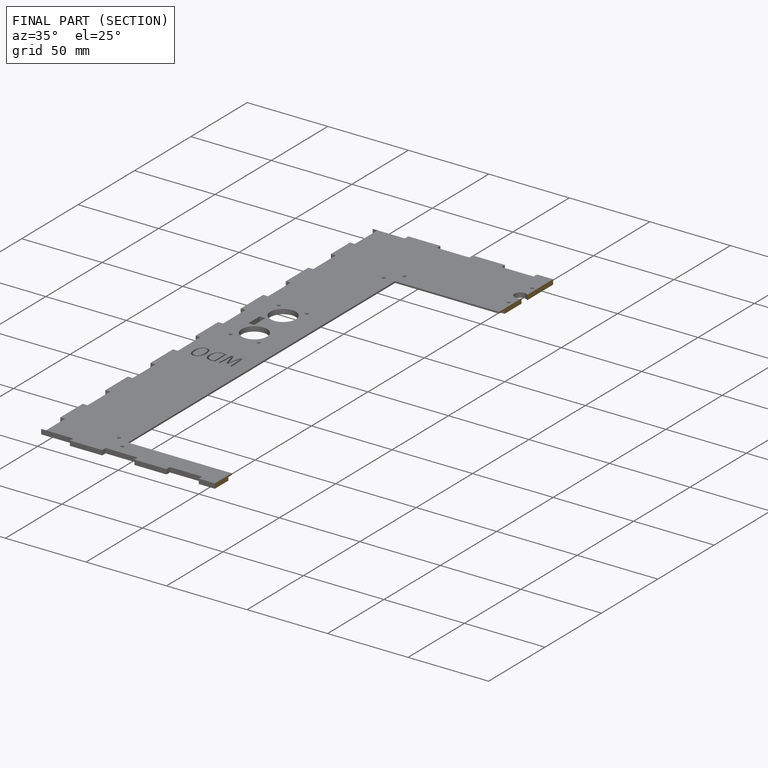
[diagram: finished part — half-section view (interior)]
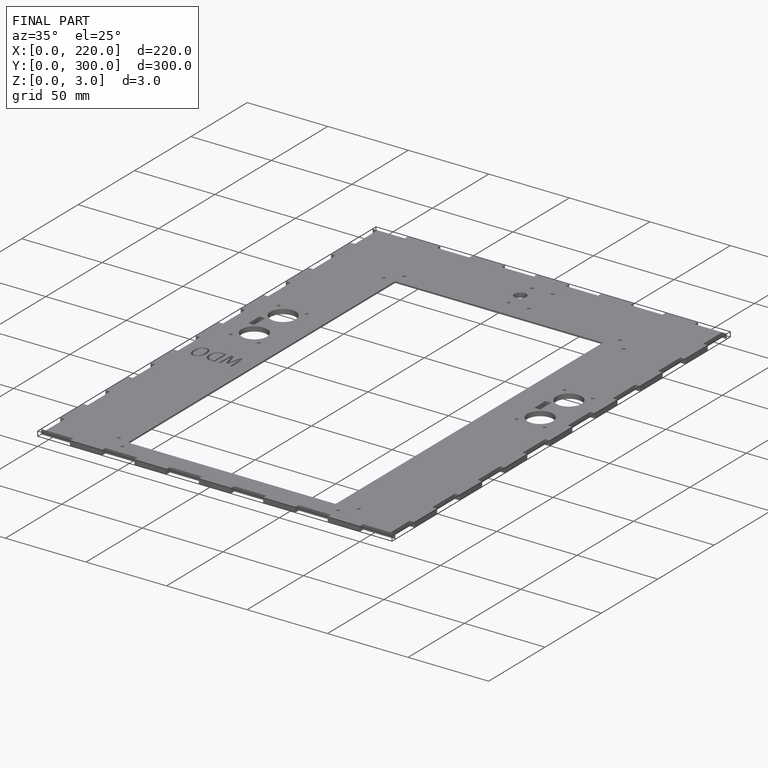
[diagram: finished part — iso view with bounding-box wireframe]
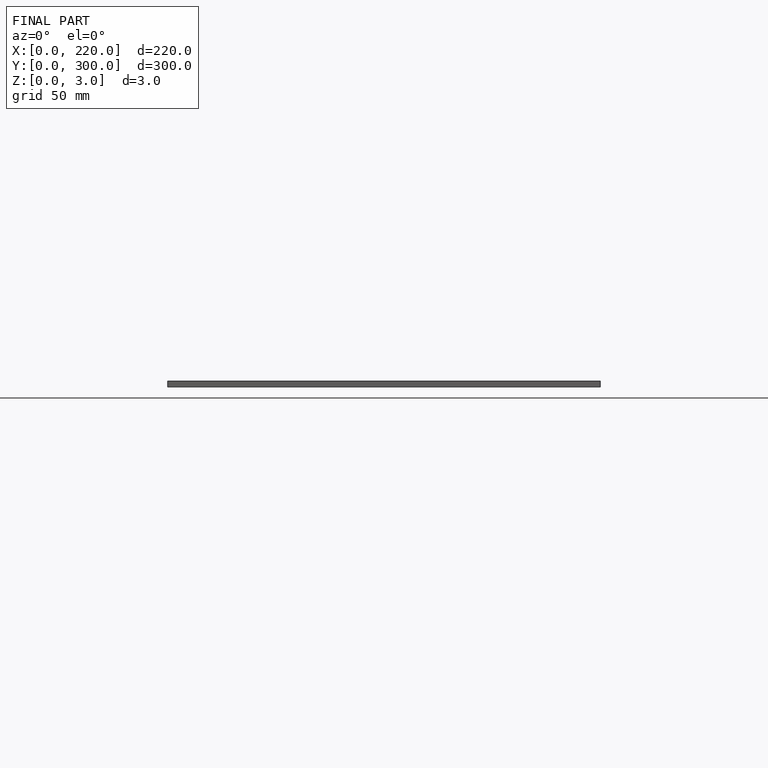
[diagram: finished part — front view with bounding-box wireframe]
